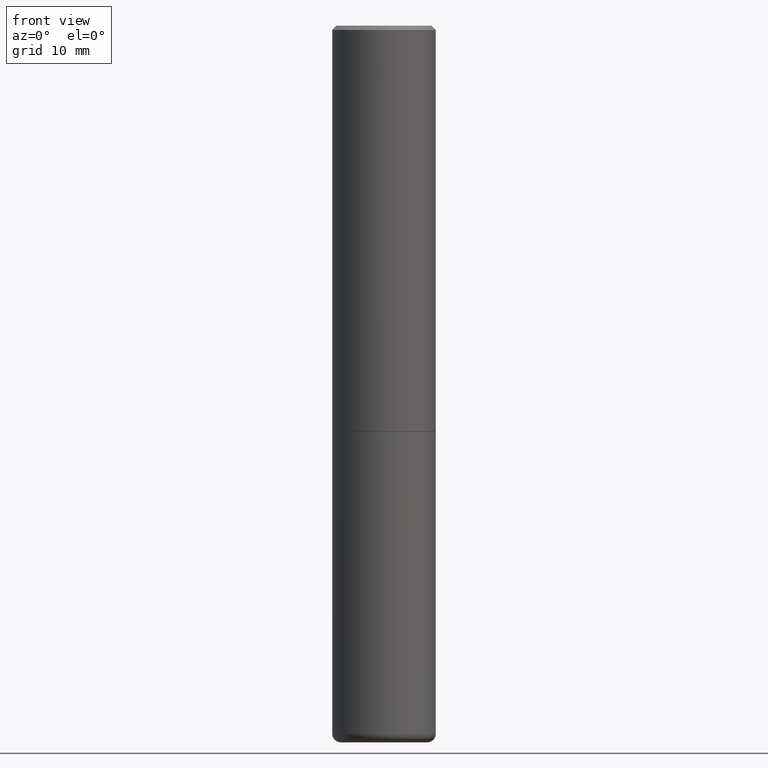
[diagram: clean part render]
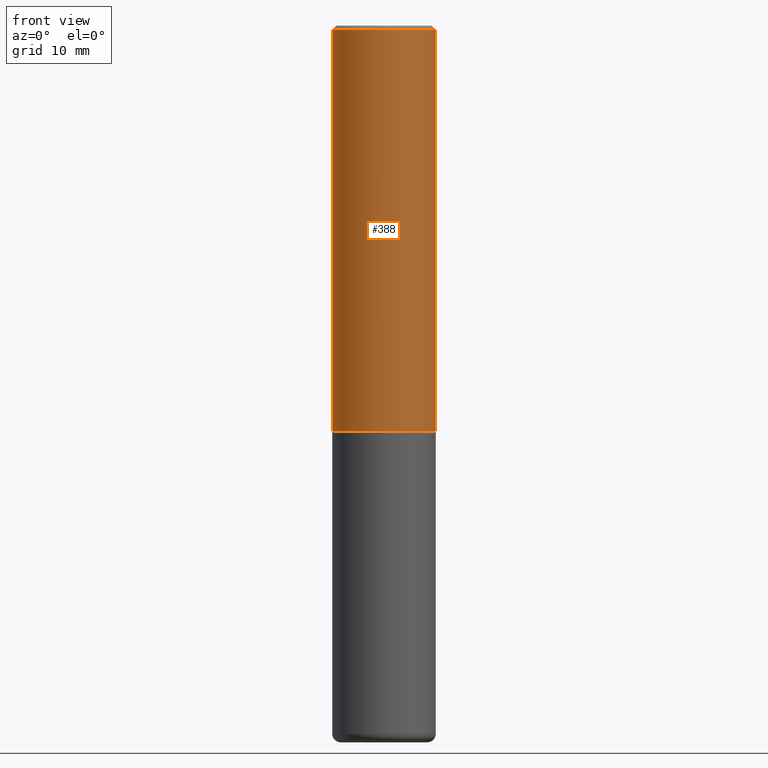
[diagram: same view with one face highlighted and labeled with its STEP entity id]
A machine part, front view. The second image highlights one B-rep face of the part: STEP entity #388.
In plain terms, the highlighted cylindrical surface (partial cylindrical patch) has radius 5.9995 mm, axis along (-0, 0, 1).
Its self-contained STEP definition (entity closure, byte-faithful):
#6 = LINE ( 'NONE', #245, #157 ) ;
#12 = EDGE_CURVE ( 'NONE', #183, #299, #156, .T. ) ;
#22 = DIRECTION ( 'NONE',  ( 1.000000000000000000, -6.982962677686266711E-15, 4.876176775795935793E-29 ) ) ;
#38 = VERTEX_POINT ( 'NONE', #416 ) ;
#43 = AXIS2_PLACEMENT_3D ( 'NONE', #48, #150, #174 ) ;
#48 = CARTESIAN_POINT ( 'NONE',  ( 4.522650010158792351E-29, -6.457145588056513780E-15, -1.849400000000000155 ) ) ;
#67 = CARTESIAN_POINT ( 'NONE',  ( -0.2361999999999999378, 1.579546157692632635E-15, -0.02000000000000005246 ) ) ;
#83 = FACE_OUTER_BOUND ( 'NONE', #221, .T. ) ;
#96 = ORIENTED_EDGE ( 'NONE', *, *, #254, .T. ) ;
#127 = AXIS2_PLACEMENT_3D ( 'NONE', #182, #224, #22 ) ;
#145 = CARTESIAN_POINT ( 'NONE',  ( -0.2362000000000000766, 1.678301941865357183E-15, -1.161852468318209177E-29 ) ) ;
#148 = DIRECTION ( 'NONE',  ( -2.445468806185136877E-29, 3.491481338843145188E-15, 1.000000000000000000 ) ) ;
#150 = DIRECTION ( 'NONE',  ( -2.445468806185136597E-29, 3.491481338843145583E-15, 1.000000000000000000 ) ) ;
#155 = CARTESIAN_POINT ( 'NONE',  ( 4.890937612370285420E-31, -6.982962677686308865E-17, -0.02000000000000005246 ) ) ;
#156 = CIRCLE ( 'NONE', #181, 0.2361999999999999378 ) ;
#157 = VECTOR ( 'NONE', #399, 39.37007874015748143 ) ;
#174 = DIRECTION ( 'NONE',  ( 1.000000000000000000, -6.982962677686266711E-15, 0.000000000000000000 ) ) ;
#181 = AXIS2_PLACEMENT_3D ( 'NONE', #155, #235, #412 ) ;
#182 = CARTESIAN_POINT ( 'NONE',  ( 0.000000000000000000, 0.000000000000000000, 0.000000000000000000 ) ) ;
#183 = VERTEX_POINT ( 'NONE', #67 ) ;
#199 = VERTEX_POINT ( 'NONE', #265 ) ;
#216 = CYLINDRICAL_SURFACE ( 'NONE', #127, 0.2362000000000000766 ) ;
#221 = EDGE_LOOP ( 'NONE', ( #329, #376, #96, #351 ) ) ;
#223 = CIRCLE ( 'NONE', #43, 0.2362000000000002153 ) ;
#224 = DIRECTION ( 'NONE',  ( -2.445468806185136597E-29, 3.491481338843145583E-15, 1.000000000000000000 ) ) ;
#235 = DIRECTION ( 'NONE',  ( -2.445468806185136597E-29, 3.491481338843145583E-15, 1.000000000000000000 ) ) ;
#245 = CARTESIAN_POINT ( 'NONE',  ( 0.2362000000000000766, -1.649375784469496722E-15, 1.151752954443000368E-29 ) ) ;
#247 = VECTOR ( 'NONE', #148, 39.37007874015748143 ) ;
#254 = EDGE_CURVE ( 'NONE', #199, #299, #6, .T. ) ;
#265 = CARTESIAN_POINT ( 'NONE',  ( 0.2362000000000002153, -8.106521372526011094E-15, -1.849400000000000155 ) ) ;
#299 = VERTEX_POINT ( 'NONE', #408 ) ;
#329 = ORIENTED_EDGE ( 'NONE', *, *, #330, .F. ) ;
#330 = EDGE_CURVE ( 'NONE', #38, #183, #404, .T. ) ;
#351 = ORIENTED_EDGE ( 'NONE', *, *, #12, .F. ) ;
#376 = ORIENTED_EDGE ( 'NONE', *, *, #383, .T. ) ;
#383 = EDGE_CURVE ( 'NONE', #38, #199, #223, .T. ) ;
#388 = ADVANCED_FACE ( 'NONE', ( #83 ), #216, .T. ) ;
#399 = DIRECTION ( 'NONE',  ( -2.445468806185136877E-29, 3.491481338843145188E-15, 1.000000000000000000 ) ) ;
#404 = LINE ( 'NONE', #145, #247 ) ;
#408 = CARTESIAN_POINT ( 'NONE',  ( 0.2361999999999999378, -1.690279253850498377E-15, -0.02000000000000005246 ) ) ;
#412 = DIRECTION ( 'NONE',  ( 1.000000000000000000, -6.982962677686266711E-15, 0.000000000000000000 ) ) ;
#416 = CARTESIAN_POINT ( 'NONE',  ( -0.2362000000000002431, -1.585185665551328595E-15, -1.849400000000000155 ) ) ;